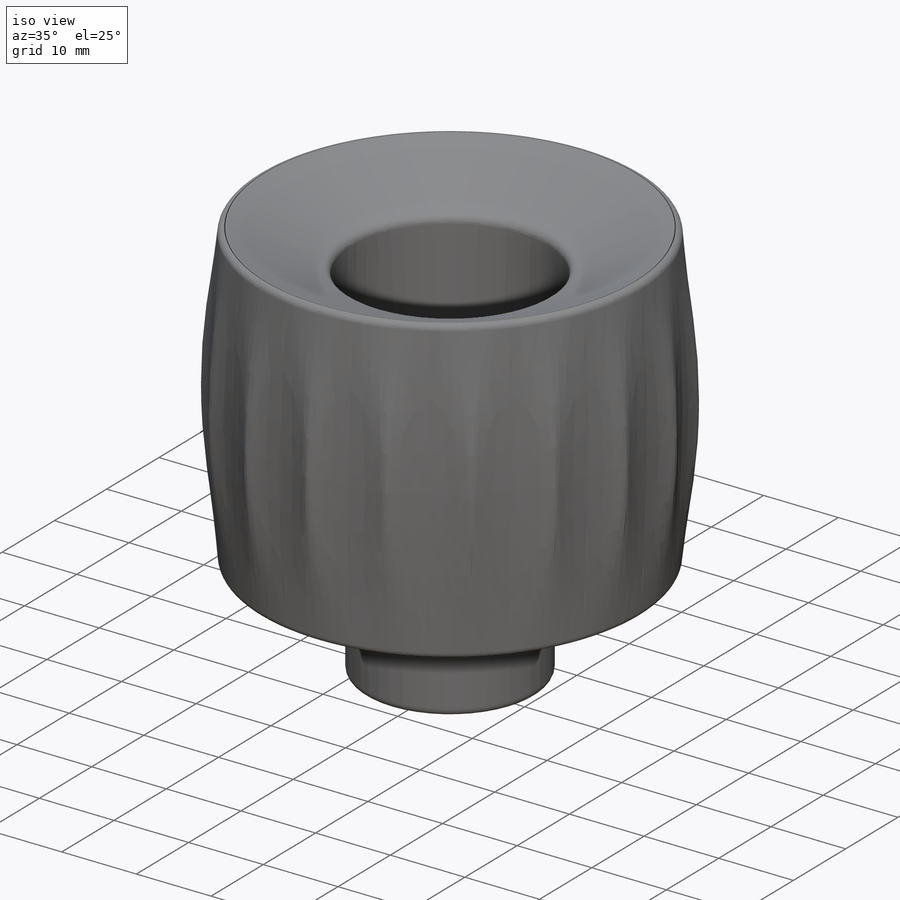
[diagram: iso view]
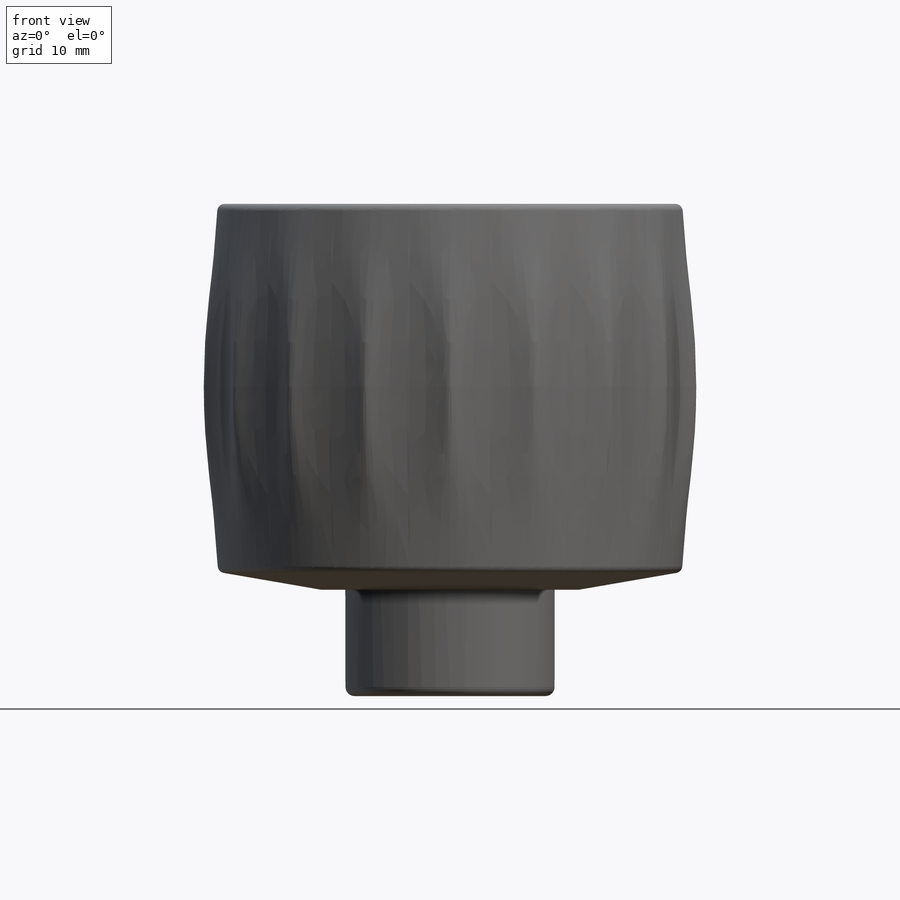
[diagram: front view]
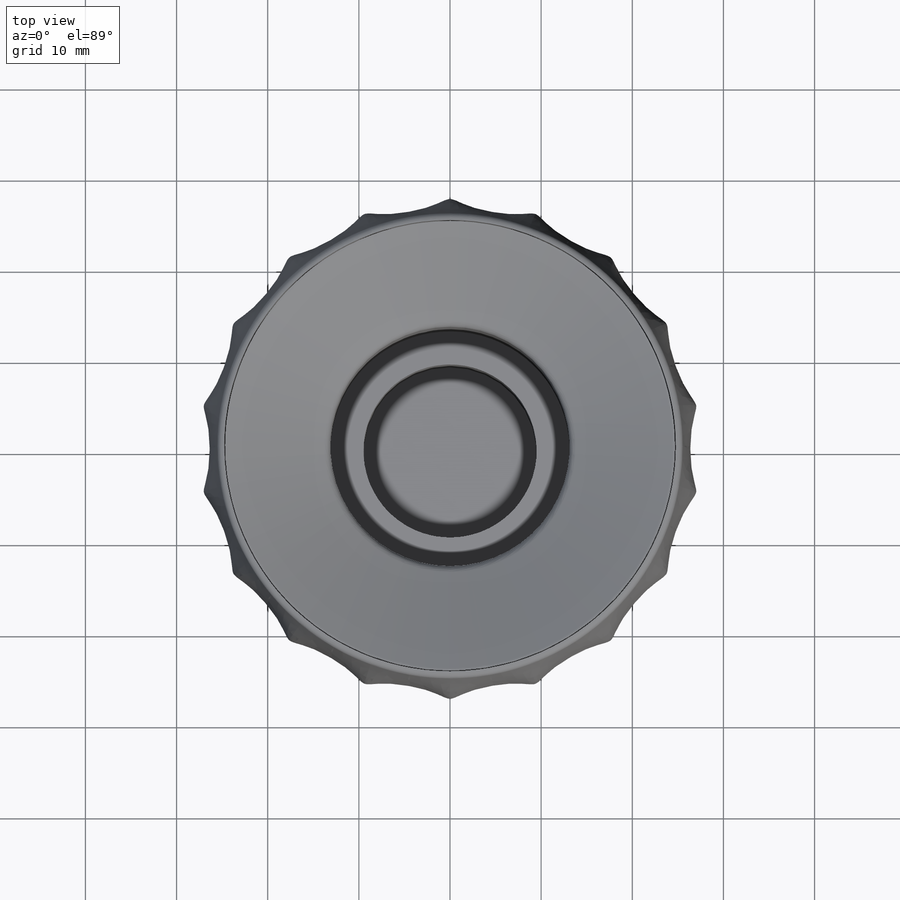
[diagram: top view]
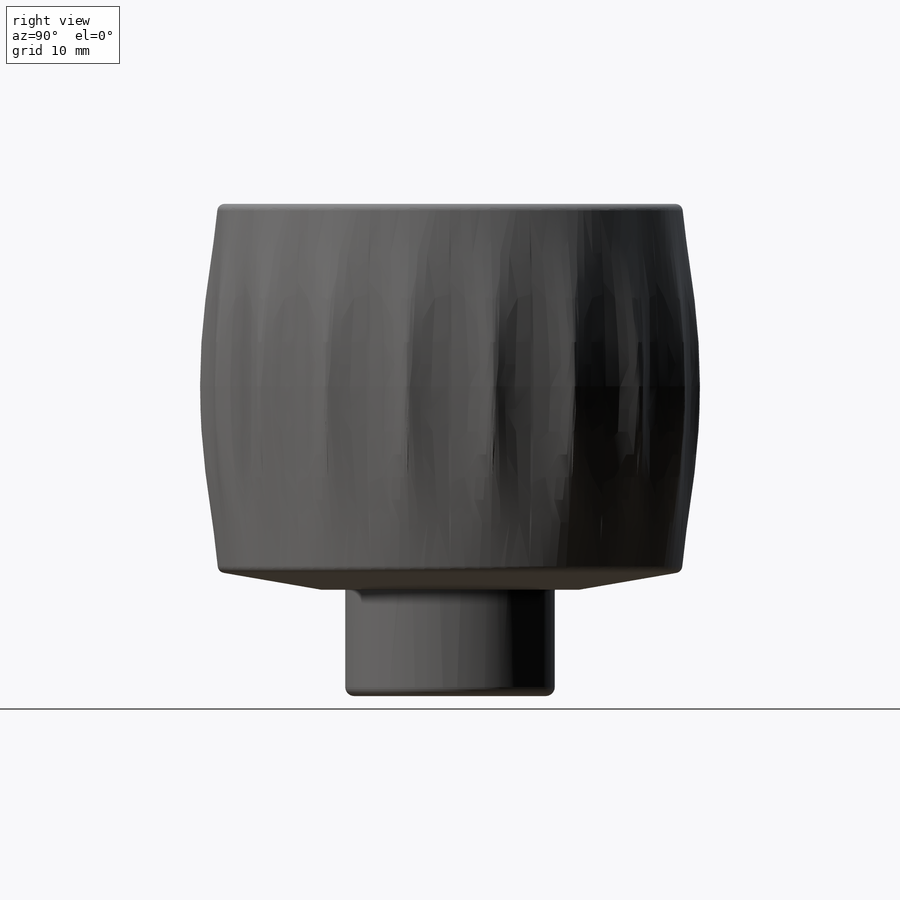
[diagram: right view]
SOLIDWORKS PART (.sldprt)
format: sldprt  version: not decoded by parser v0  size: 5,037,056 bytes
history: native  units: mm
features: sketch x27, move_body x20, extrude x10, fillet x9, surface_op x8, cut_extrude x6, shell x3, revolve x3, pattern_circular x3, mirror x2, boolean_combine x2, delete_body x2, material x1, curve x1 + 1 further entry (+16 scaffold rows collapsed; 3 parser-record rows omitted)
feature tree (117):
  scaffold x16  (default folders/planes/origin — collapsed)
  material  "Material <not specified>"
  sketch  "Sketch1"  dims[D1=42.0mm]
  extrude  "Boss-Extrude1"  Depth=48mm
  sketch  "Sketch2"  dims[D1=20.0mm D2=4.0]
  extrude  "Boss-Extrude2"  Depth=28mm
  sketch  "Sketch3"  dims[D1=50.0mm]
  extrude  "Boss-Extrude3"  Depth=32mm
  sketch  "Sketch4"  dims[D1=36.0mm D2=4.0]
  extrude  "Boss-Extrude4"  Depth=28mm
  sketch  "Sketch5"  dims[D2=9.0mm D1=44.0mm]
  extrude  "Boss-Extrude5"  Depth=32mm
  "BULB_1"
  parser-record x3  (decoder bookkeeping rows leaked as tree rows — omitted from the tree; the rows remain in map.json)
  move_body  "Body-Move/Copy3"
  surface_op  "Surface-Plane2"
  surface_op  "Surface-Knit2"
  surface_op  "Surface-Plane3"
  surface_op  "Surface-Knit3"
  shell  "Shell1"  Thickness=1mm
  sketch  "Sketch7"  dims[D1=35.0mm D2=1.67mm D3=1.67mm D4=26.0mm]
  extrude  "Boss-Extrude6"  Depth=28mm
  move_body  "Body-Move/Copy14"
  move_body  "Body-Move/Copy15"
  sketch  "Sketch8"  dims[c1.D1=9.0mm c1.D2=9.0mm c2.D1=11.5mm]
  revolve  "Revolve1"  Angle=360deg
  fillet  "Fillet1"  Radius=0.1mm
  sketch  "Sketch11"
  surface_op  "Surface-Extrude1"
  sketch  "Sketch12"
  sketch  "Sketch14"
  curve  "Split Line2"
  sketch  "Sketch15"  dims[gD1=0.0deg]
  surface_op  "Surface-Knit4"
  move_body  "Body-Move/Copy16"
  sketch  "Sketch16"
  cut_extrude  "Cut-Extrude1"  Depth=190mm
  mirror  "Mirror1"
  mirror  "Mirror2"
  pattern_circular  "CirPattern1"  Count=18 Angle=20deg
  boolean_combine  "Combine1"
  pattern_circular  "Combine2"  [2 undecoded]
  sketch  "Sketch18"
  cut_extrude  "Cut-Extrude2"  Depth=190mm
  sketch  "Sketch19"
  extrude  "Boss-Extrude7"  [1 undecoded]
  sketch  "Sketch20"
  revolve  "Revolve4"  Angle=360deg
  pattern_circular  "Combine5"  [2 undecoded]
  fillet  "Fillet5"  Radius=0.75mm
  sketch  "Sketch21"  dims[c1.D1=360.0deg c2.D1=0.1mm]
  fillet  "Fillet6"  Radius=1mm
  sketch  "Sketch22"  dims[D1=10.0mm D19=20.0mm]
  surface_op  "Surface-Plane4"
  surface_op  "Surface-Knit5"
  boolean_combine  "Cut-Thicken2"
  fillet  "Fillet7"  Radius=0.1mm
  fillet  "Fillet8"  Radius=0.1mm
  sketch  "Sketch23"  dims[D1=20.0mm]
  extrude  "Boss-Extrude8"  Depth=1.67mm
  sketch  "Sketch24"  dims[D1=26.0mm D2=23.0mm]
  extrude  "Boss-Extrude9"  Depth=30mm
  sketch  "Sketch25"  dims[D1=23.0mm]
  cut_extrude  "Cut-Extrude3"  Depth=30mm
  shell  "Shell7"  Thickness=2mm
  move_body  "Body-Move/Copy18"
  move_body  "Body-Move/Copy19"
  sketch  "Sketch26"  dims[D1=26.0mm]
  sketch  "Sketch27"  dims[D1=23.5mm]
  cut_extrude  "Cut-Extrude4"  Depth=30mm
  sketch  "Sketch28"  dims[D1=23.0mm]
  extrude  "Boss-Extrude10"  Depth=20mm
  sketch  "Sketch29"  dims[D1=2.0mm]
  cut_extrude  "Cut-Extrude5"  Depth=20mm
  sketch  "Sketch30"  dims[D1=24.5mm]
  cut_extrude  "Cut-Extrude6"  Depth=37mm
  fillet  "Fillet9"  Radius=1mm
  delete_body  "Body-Delete1"
  delete_body  "Body-Delete2"
  move_body  "Body-Move/Copy20"
  move_body  "Body-Move/Copy17"
  shell  "Shell4"  Thickness=2mm
  sketch  "Sketch17"
  revolve  "Revolve2"  Angle=360deg
  fillet  "Fillet4"  Radius=0.5mm
  fillet  "Fillet2"  Radius=0.5mm
  fillet  "Fillet3"  Radius=0.5mm
  move_body  "Body-Move/Copy1"
  move_body  "Body-Move/Copy2"
  move_body  "Body-Move/Copy4"
  move_body  "Body-Move/Copy5"
  move_body  "Body-Move/Copy6"
  move_body  "Body-Move/Copy7"
  move_body  "Body-Move/Copy8"
  move_body  "Body-Move/Copy9"
  move_body  "Body-Move/Copy10"
  move_body  "Body-Move/Copy11"
  sketch  "Sketch6"
  move_body  "Body-Move/Copy12"
  move_body  "Body-Move/Copy13"
decode coverage: 49 of 96 modeling features carry decoded parameters; 1 rows unclassified (native names shown)
note: 5 parameter values undecoded
note: suppression state not decoded; provenance and decode notes live in map.json
